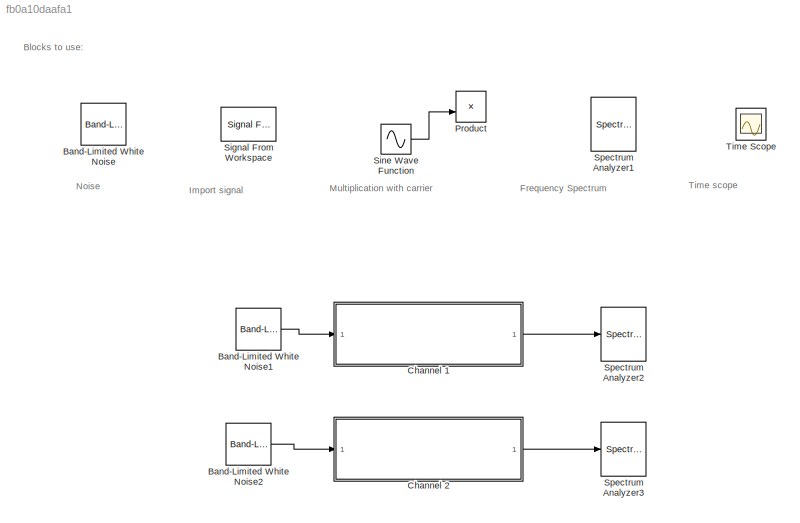
MODEL slx_fb0a10daafa1
KIND model
CONFIG AbsTol = auto
CONFIG EnableMultiTasking = off
CONFIG FixedStep = 1e-9
CONFIG MaxStep = auto
CONFIG MinStep = auto
CONFIG RelTol = 1e-3
CONFIG SampleTimeConstraint = Unconstrained
CONFIG SolverName = FixedStepAuto
CONFIG StartTime = 0.0
CONFIG StopTime = inf
BLOCK [Reference] Band-Limited White Noise  REF=simulink/Sources/Band-Limited
White Noise
  SourceBlock = simulink/Sources/Band-Limited\nWhite Noise
  SourceType = Band-Limited White Noise.
BLOCK [Reference] Band-Limited White Noise1  REF=simulink/Sources/Band-Limited
White Noise
  SourceBlock = simulink/Sources/Band-Limited\nWhite Noise
  SourceType = Band-Limited White Noise.
BLOCK [Reference] Band-Limited White Noise2  REF=simulink/Sources/Band-Limited
White Noise
  SourceBlock = simulink/Sources/Band-Limited\nWhite Noise
  SourceType = Band-Limited White Noise.
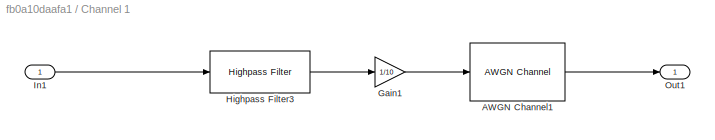
BLOCK [SubSystem] Channel 1 
  Permissions = NoReadOrWrite
BLOCK [Reference] Channel 1 /AWGN Channel1  REF=commchan3/AWGN
Channel
  SourceBlock = commchan3/AWGN\nChannel
  SourceType = AWGN Channel
  UserDataPersistent = on
BLOCK [Gain] Channel 1 /Gain1
  Gain = 1/10
BLOCK [Reference] Channel 1 /Highpass Filter3  REF=dspfdesign/Highpass Filter
  SourceBlock = dspfdesign/Highpass Filter
  SourceType = dsp.HighpassFilter
BLOCK [Inport] Channel 1 /In1
BLOCK [Outport] Channel 1 /Out1
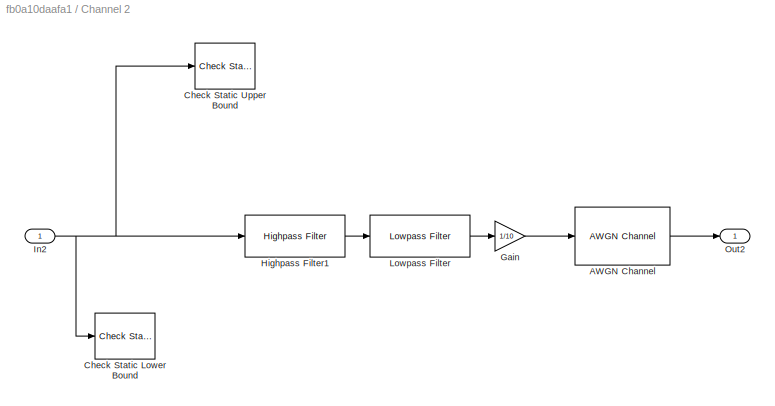
BLOCK [SubSystem] Channel 2
  Permissions = NoReadOrWrite
BLOCK [Reference] Channel 2/AWGN Channel  REF=commchan3/AWGN
Channel
  SourceBlock = commchan3/AWGN\nChannel
  SourceType = AWGN Channel
  UserDataPersistent = on
BLOCK [Reference] Channel 2/Check Static Lower Bound  REF=simulink/Model
Verification/Check Static 
Lower Bound
  Description = -1 < u
  SourceBlock = simulink/Model\nVerification/Check Static \nLower Bound
  SourceType = Checks_SMin
BLOCK [Reference] Channel 2/Check Static Upper Bound  REF=simulink/Model
Verification/Check Static 
Upper Bound
  Description = u <= 1
  SourceBlock = simulink/Model\nVerification/Check Static \nUpper Bound
  SourceType = Checks_SMax
BLOCK [Gain] Channel 2/Gain
  Gain = 1/10
BLOCK [Reference] Channel 2/Highpass Filter1  REF=dspfdesign/Highpass Filter
  SourceBlock = dspfdesign/Highpass Filter
  SourceType = dsp.HighpassFilter
BLOCK [Inport] Channel 2/In2
BLOCK [Reference] Channel 2/Lowpass Filter  REF=dspfdesign/Lowpass Filter
  SourceBlock = dspfdesign/Lowpass Filter
  SourceType = dsp.LowpassFilter
BLOCK [Outport] Channel 2/Out2
BLOCK [Product] Product
BLOCK [Reference] Signal From Workspace  REF=dspsrcs4/Signal From
Workspace
  Commented = on
  SourceBlock = dspsrcs4/Signal From\nWorkspace
  SourceType = Signal From Workspace
BLOCK [Sin] Sine Wave Function
  Commented = on
  Frequency = 2*pi*Fc
  SampleTime = 1/fs
BLOCK [SpectrumAnalyzer] Spectrum Analyzer1
  ScopeSpecificationString = spbscopes.SpectrumAnalyzerBlockCfg('CurrentConfiguration', extmgr.ConfigurationSet(extmgr.Configuration('Core','General UI',true),extmgr.Configuration('Core','Source UI',true),extmgr.Configuration('Sources','WiredSimulink',true),extmgr.Configuration('Visuals','Spectrum',true,'AxesProperties',struct('Color',{[0 0 0],[0 0 0]},'XColor',{[0.686274509803922 0.686274509803922 0.686274509803922],[0.68627...<+1790ch>
BLOCK [SpectrumAnalyzer] Spectrum Analyzer2
  ScopeSpecificationString = spbscopes.SpectrumAnalyzerBlockCfg('CurrentConfiguration', extmgr.ConfigurationSet(extmgr.Configuration('Core','General UI',true),extmgr.Configuration('Core','Source UI',true),extmgr.Configuration('Sources','WiredSimulink',true),extmgr.Configuration('Visuals','Spectrum',true,'AxesProperties',struct('Color',{[0 0 0],[0 0 0]},'XColor',{[0.686274509803922 0.686274509803922 0.686274509803922],[0.68627...<+1898ch>
BLOCK [SpectrumAnalyzer] Spectrum Analyzer3
  ScopeSpecificationString = spbscopes.SpectrumAnalyzerBlockCfg('CurrentConfiguration', extmgr.ConfigurationSet(extmgr.Configuration('Core','General UI',true),extmgr.Configuration('Core','Source UI',true),extmgr.Configuration('Sources','WiredSimulink',true),extmgr.Configuration('Visuals','Spectrum',true,'AxesProperties',struct('Color',{[0 0 0],[0 0 0]},'XColor',{[0.686274509803922 0.686274509803922 0.686274509803922],[0.68627...<+1898ch>
BLOCK [Scope] Time Scope
  DefaultConfigurationName = spbscopes.TimeScopeBlockCfg
  Floating = off
  NumInputPorts = 1
  ScopeSpecificationString = spbscopes.TimeScopeBlockCfg('CurrentConfiguration', extmgr.ConfigurationSet(extmgr.Configuration('Core','General UI',true,'FigureColor',[0.156862745098039 0.156862745098039 0.156862745098039]),extmgr.Configuration('Core','Source UI',true),extmgr.Configuration('Sources','WiredSimulink',true),extmgr.Configuration('Visuals','Time Domain',true,'DisplayPropertyDefaults',struct('MinYLimReal','-0.17192',...<+1470ch>
  UserDataPersistent = on
ANNOTATION (root): Blocks to use:
ANNOTATION (root): Frequency Spectrum
ANNOTATION (root): Import signal
ANNOTATION (root): Multiplication with carrier
ANNOTATION (root): Noise
ANNOTATION (root): Time scope
LINE Band-Limited White Noise1:1 -> Channel 1 :1
LINE Band-Limited White Noise2:1 -> Channel 2:1
LINE Channel 1 /AWGN Channel1:1 -> Channel 1 /Out1:1
LINE Channel 1 /Gain1:1 -> Channel 1 /AWGN Channel1:1
LINE Channel 1 /Highpass Filter3:1 -> Channel 1 /Gain1:1
LINE Channel 1 /In1:1 -> Channel 1 /Highpass Filter3:1
LINE Channel 1 :1 -> Spectrum Analyzer2:1
LINE Channel 2/AWGN Channel:1 -> Channel 2/Out2:1
LINE Channel 2/Gain:1 -> Channel 2/AWGN Channel:1
LINE Channel 2/Highpass Filter1:1 -> Channel 2/Lowpass Filter:1
NET Channel 2/In2:1 -> Channel 2/Check Static Lower Bound:1, Channel 2/Check Static Upper Bound:1, Channel 2/Highpass Filter1:1
LINE Channel 2/Lowpass Filter:1 -> Channel 2/Gain:1
LINE Channel 2:1 -> Spectrum Analyzer3:1
LINE Sine Wave Function:1 -> Product:2
note: NET lines group one-source signal fan-out (src -> all destinations, sorted); 1:1 wires keep LINE
